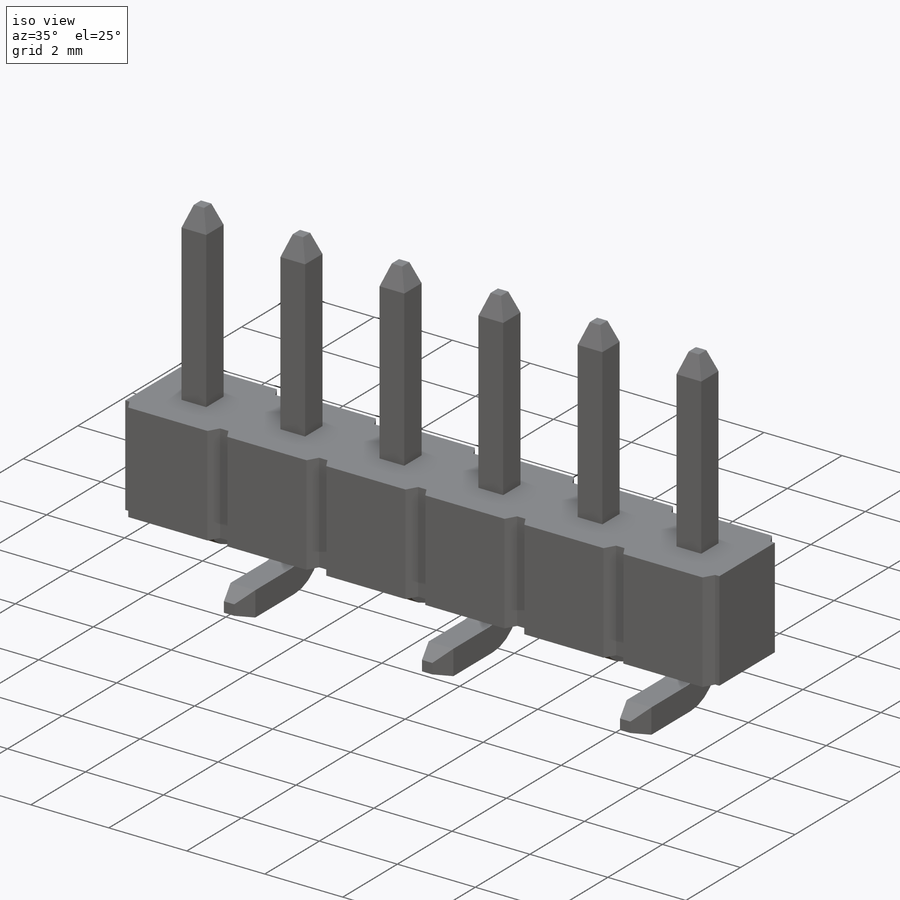
[diagram: iso view]
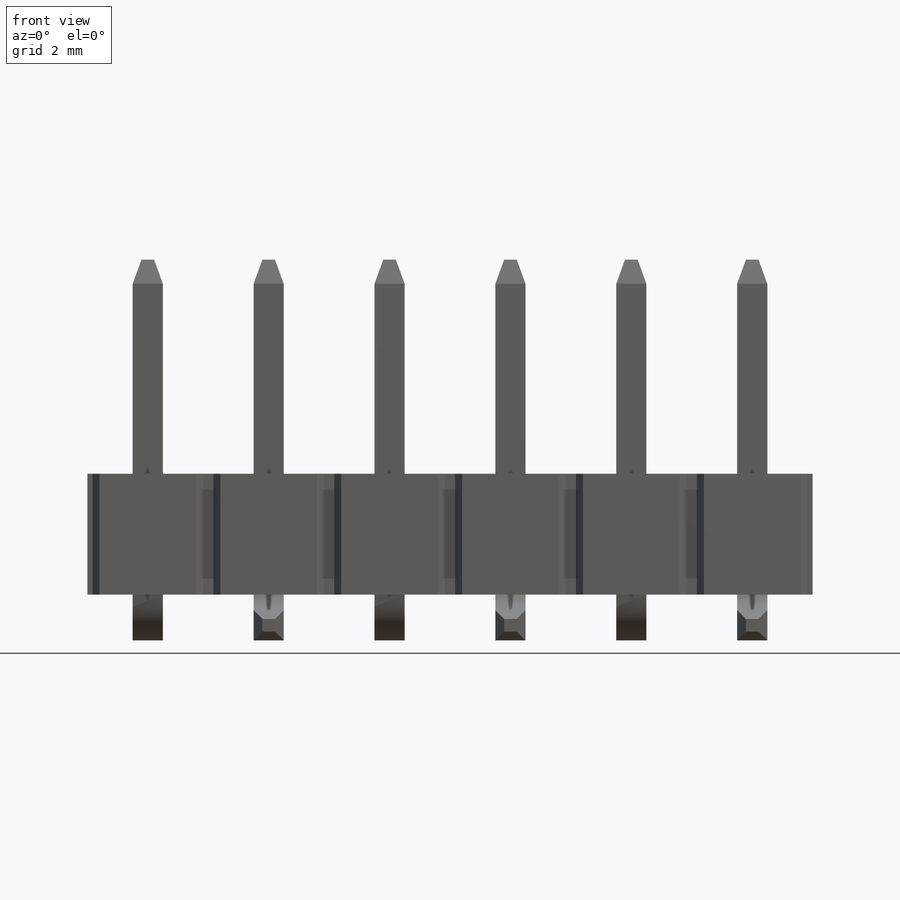
[diagram: front view]
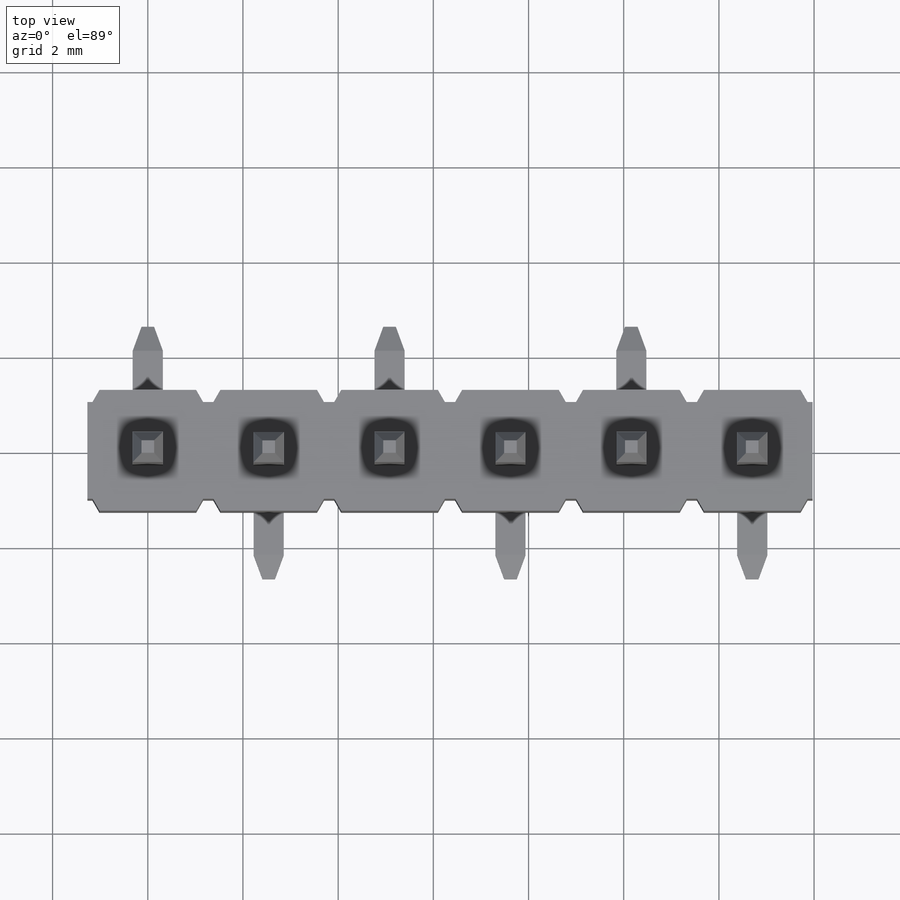
[diagram: top view]
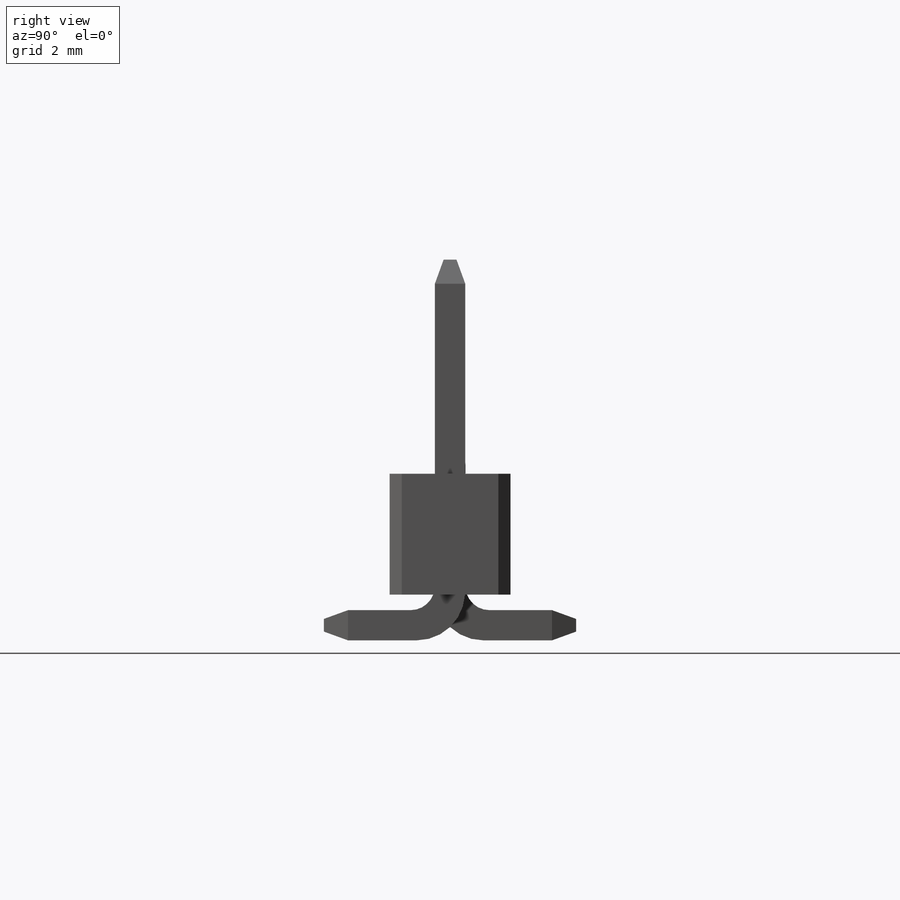
[diagram: right view]
SOLIDWORKS PART (.sldprt)
format: sldprt  version: not decoded by parser v0  size: 548,352 bytes
history: native  units: mm
features: plane x7, sketch x4, pattern_linear x4, extrude x3, chamfer x2, material x1, cut_extrude x1 + 1 further entry (+14 scaffold rows collapsed)
feature tree (37):
  scaffold x14  (default folders/planes/origin — collapsed)
  material  "Material <not specified>"
  plane  "Side"
  "Design Table"
  plane  "Plane for Single Option"  Offset=2.54mm
  plane  "Mid Plane"  Offset=6.35mm
  sketch  "Sketch1"  dims[c1.D1=2.54mm c1.D2=2.54mm c1.D3=0.1905mm c1.D4=0.5715mm c1.D5=0.889mm c1.D6=1.778mm c1.D7=0.6223mm c1.D8=1.27mm c2.D4=15.24mm]
  extrude  "Base Extrude"  Depth=2.54mm
  sketch  "Sketch8"  dims[c1.D10=1.016mm c1.D11=0.508mm c1.D1=0.508mm c1.D2=0.635mm c2.D2=70.0deg c2.D3=5.842mm c2.D4=1.27mm c2.D5=0.635mm c2.D6=7.112mm c3.D5=0.635mm c3.D4=1.27mm c3.D3=5.842mm c4.D4=~0.00254mm c4.D3=7.112mm c4.D6=2.2225mm c4.D7=3.683mm c4.D8=0.508mm c4.D9=0.635mm c5.D9=70.0deg c5.Pin=2.65mm c5.D3=4.5mm c5.D6=3.5mm]
  extrude  "Pin"  Depth=0.635mm
  chamfer  "Pin Chamfer"  Distance=0.508mm Angle=20deg
  pattern_linear  "Pin Pattern"  Count1=3 Count2=1 Spacing1=5.08mm Spacing2=2.54mm
  sketch  "Sketch9"  dims[c1.D10=0.508mm c1.D11=1.016mm c1.D1=1.27mm c1.D2=0.635mm c1.D3=~5.391718mm c1.D4=0.635mm c2.D4=70.0deg c2.D3=5.842mm c3.D4=~6.871374mm c3.D5=~0.307222mm c4.D5=110.0deg c5.D5=0.508mm c5.D6=0.635mm c6.D6=70.0deg c6.D1=~0.00254mm c6.D3=~0.265206mm c7.D3=90.0deg c8.D3=7.112mm c8.D4=0.508mm c8.D7=0.635mm c9.D7=70.0deg c9.D8=3.683mm c9.D9=~2.61001mm c10.D9=90.0deg c11.D9=2.2225mm c11.D3=3.683mm c12.D9=2.4511mm c12.D3=4.5mm c12.D8=3.5mm c13.D9=2.65mm]
  extrude  "Pin 2"  Depth=0.635mm
  chamfer  "Pin 2 Chamfer"  Distance=0.508mm Angle=20deg
  pattern_linear  "Pin 2 Pattern"  Count1=3 Count2=1 Spacing1=5.08mm Spacing2=2.54mm
  sketch  "Sketch15"  dims[c1.D1=5.08mm c1.D2=0.254mm c1.D3=0.254mm c1.D4=0.508mm c2.D4=~59.999999deg c2.D5=0.508mm c3.D5=~59.999999deg c3.D6=~0.293294mm c4.D6=~59.999999deg c5.D6=0.508mm c6.D6=~59.999999deg c7.D6=~0.293294mm c8.D6=~59.999999deg c9.D6=~0.214706mm]
  cut_extrude  "SV Cut"  [1 undecoded]
  pattern_linear  "SV Cut Pattern"  Count1=5 Count2=1 Spacing1=2.54mm Spacing2=2.54mm
  plane  "Polarize Plane -S"  Offset=2.54mm
  plane  "Polarize Plane -D"  Offset=2.54mm
  plane  "Polarize Plane-H"  Offset=2.54mm
  plane  "Polarize Plane-HD"  Offset=2.54mm
  pattern_linear  "LPattern1"  Count1=3 Count2=1 Spacing1=2.54mm Spacing2=10mm Post=7.112mm K=6.35mm PS=0.508mm PH=7.112mm
decode coverage: 13 of 14 modeling features carry decoded parameters; 1 rows unclassified (native names shown)
note: ~ marks probable driven/reference dimensions
note: 1 parameter value undecoded
note: suppression state not decoded; provenance and decode notes live in map.json
